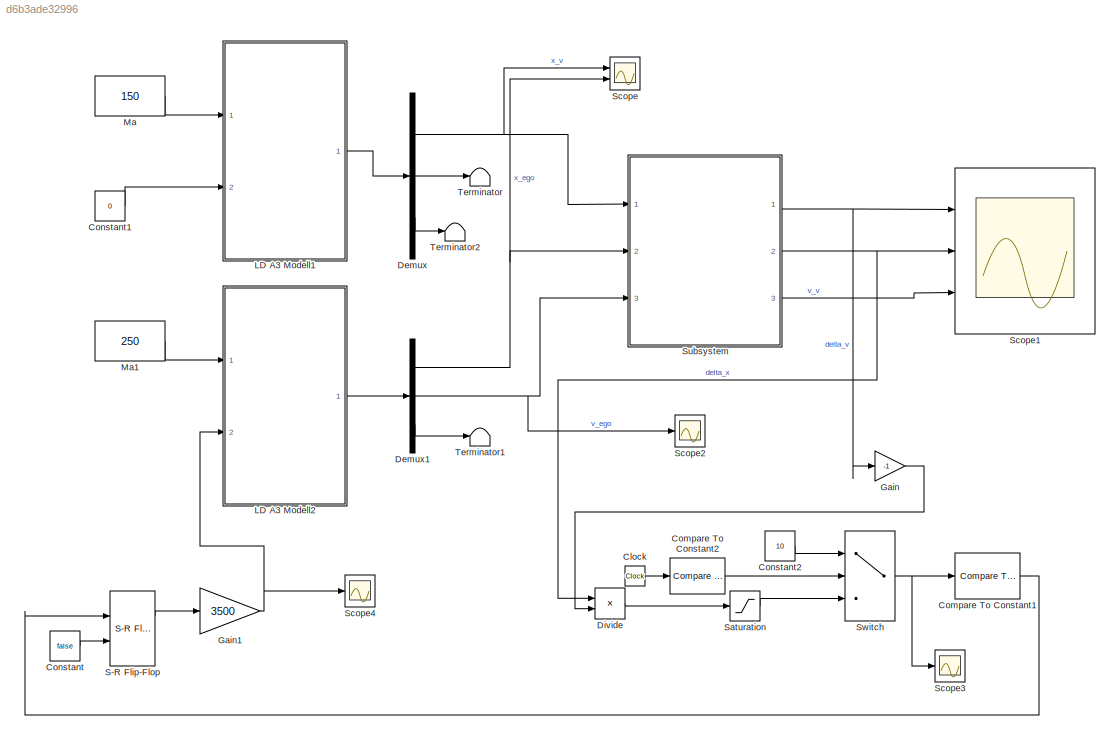
MODEL slx_d6b3ade32996
KIND model
CONFIG AbsTol = auto
CONFIG EnableMultiTasking = off
CONFIG FixedStep = 0.01
CONFIG MaxStep = auto
CONFIG MinStep = auto
CONFIG RelTol = 1e-3
CONFIG SampleTimeConstraint = Unconstrained
CONFIG SolverName = ode3
CONFIG StartTime = 0.0
CONFIG StopTime = 70
BLOCK [Clock] Clock
BLOCK [Reference] Compare To Constant1  REF=simulink/Logic and Bit
Operations/Compare
To Constant
  Ports = [1, 1]
  SourceBlock = simulink/Logic and Bit\nOperations/Compare\nTo Constant
  SourceProductBaseCode = SL
  SourceType = Compare To Constant
BLOCK [Reference] Compare To Constant2  REF=simulink/Logic and Bit
Operations/Compare
To Constant
  Ports = [1, 1]
  SourceBlock = simulink/Logic and Bit\nOperations/Compare\nTo Constant
  SourceProductBaseCode = SL
  SourceType = Compare To Constant
BLOCK [Constant] Constant
  Value = false
BLOCK [Constant] Constant1
  Value = 0
BLOCK [Constant] Constant2
  Value = 10
BLOCK [Demux] Demux
  Outputs = 3
  Ports = [1, 3]
BLOCK [Demux] Demux1
  Outputs = 3
  Ports = [1, 3]
BLOCK [Product] Divide
  Inputs = */
  Ports = [2, 1]
BLOCK [Gain] Gain
  Gain = -1
BLOCK [Gain] Gain1
  Gain = 3500
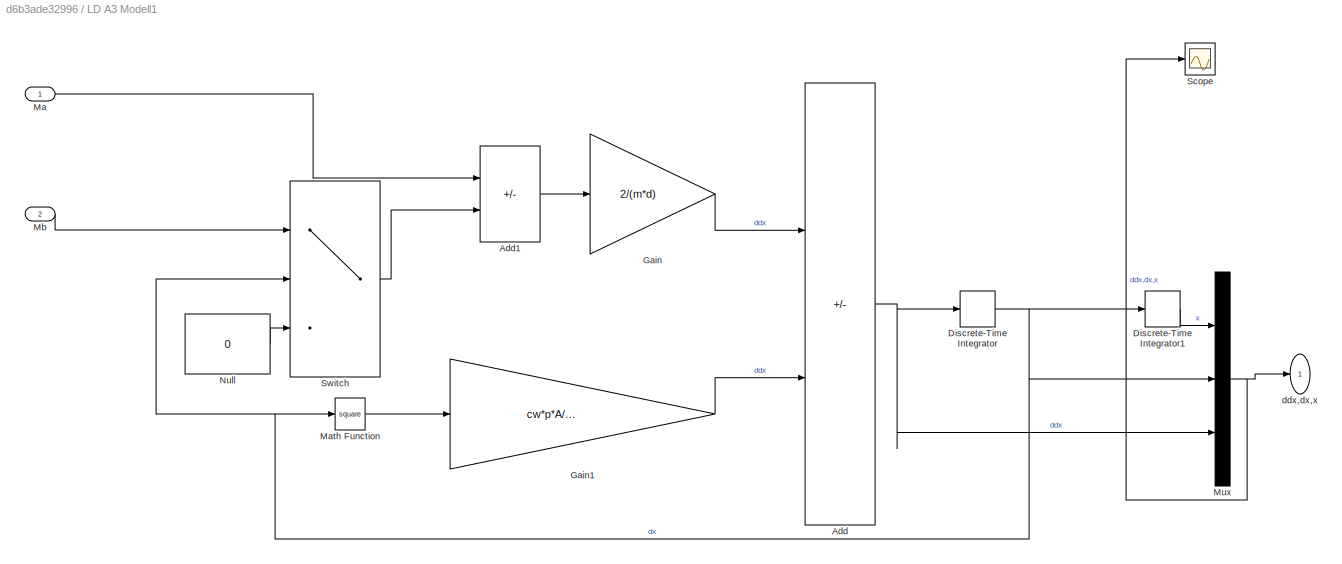
BLOCK [SubSystem] LD A3 Modell1
  Ports = [2, 1]
  RequestExecContextInheritance = off
BLOCK [Sum] LD A3 Modell1/Add
  IconShape = rectangular
  Inputs = +-
  Ports = [2, 1]
BLOCK [Sum] LD A3 Modell1/Add1
  IconShape = rectangular
  Inputs = +-
  Ports = [2, 1]
BLOCK [DiscreteIntegrator] LD A3 Modell1/Discrete-Time Integrator
  ICPrevOutput = DiscIntNeverNeededParam
  ICPrevScaledInput = DiscIntNeverNeededParam
  InitialCondition = v_start
  InitialConditionSetting = Auto
  Ports = [1, 1]
  SampleTime = -1
BLOCK [DiscreteIntegrator] LD A3 Modell1/Discrete-Time Integrator1
  ICPrevOutput = DiscIntNeverNeededParam
  ICPrevScaledInput = DiscIntNeverNeededParam
  InitialCondition = x_start
  InitialConditionSetting = Auto
  Ports = [1, 1]
  SampleTime = -1
BLOCK [Gain] LD A3 Modell1/Gain
  Gain = 2/(m*d)
BLOCK [Gain] LD A3 Modell1/Gain1
  Gain = cw*p*A/2/m
BLOCK [Inport] LD A3 Modell1/Ma 
BLOCK [Math] LD A3 Modell1/Math Function
  Operator = square
  Ports = [1, 1]
  SignedPower = on
BLOCK [Inport] LD A3 Modell1/Mb 
  Port = 2
BLOCK [Mux] LD A3 Modell1/Mux
  DisplayOption = bar
  Inputs = 3
  Ports = [3, 1]
BLOCK [Constant] LD A3 Modell1/Null
  Value = 0
BLOCK [Scope] LD A3 Modell1/Scope
  Floating = off
  NumInputPorts = 1
  Ports = [1]
  ScopeSpecificationString = Simulink.scopes.TimeScopeBlockCfg('CurrentConfiguration', extmgr.ConfigurationSet(extmgr.Configuration('Core','General UI',true),extmgr.Configuration('Core','Source UI',true),extmgr.Configuration('Sources','WiredSimulink',true,'DataLoggingVariableName','ScopeData2'),extmgr.Configuration('Visuals','Time Domain',true,'SerializedDisplays',{struct('MinYLimReal','-173.77223','MaxYLimReal','1549.5899','...<+1439ch>
BLOCK [Switch] LD A3 Modell1/Switch
  Criteria = u2 > Threshold
  InputSameDT = off
  SaturateOnIntegerOverflow = off
BLOCK [Outport] LD A3 Modell1/ddx,dx,x
  VectorParamsAs1DForOutWhenUnconnected = off
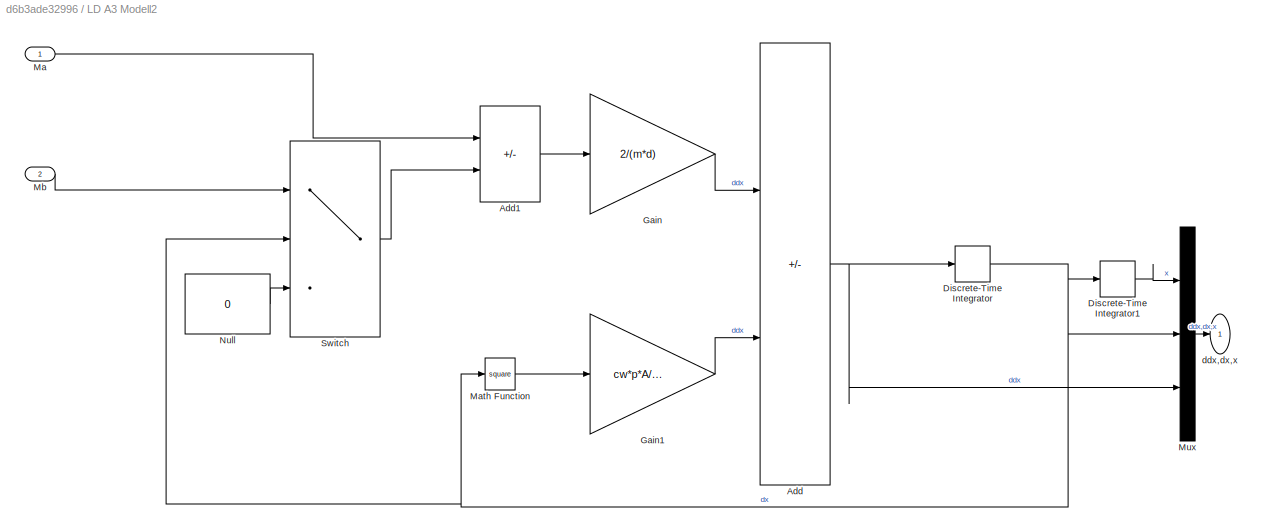
BLOCK [SubSystem] LD A3 Modell2
  Ports = [2, 1]
  RequestExecContextInheritance = off
BLOCK [Sum] LD A3 Modell2/Add
  IconShape = rectangular
  Inputs = +-
  Ports = [2, 1]
BLOCK [Sum] LD A3 Modell2/Add1
  IconShape = rectangular
  Inputs = +-
  Ports = [2, 1]
BLOCK [DiscreteIntegrator] LD A3 Modell2/Discrete-Time Integrator
  ICPrevOutput = DiscIntNeverNeededParam
  ICPrevScaledInput = DiscIntNeverNeededParam
  InitialCondition = v_start
  InitialConditionSetting = Auto
  Ports = [1, 1]
  SampleTime = -1
BLOCK [DiscreteIntegrator] LD A3 Modell2/Discrete-Time Integrator1
  ICPrevOutput = DiscIntNeverNeededParam
  ICPrevScaledInput = DiscIntNeverNeededParam
  InitialCondition = x_start
  InitialConditionSetting = Auto
  Ports = [1, 1]
  SampleTime = -1
BLOCK [Gain] LD A3 Modell2/Gain
  Gain = 2/(m*d)
BLOCK [Gain] LD A3 Modell2/Gain1
  Gain = cw*p*A/2/m
BLOCK [Inport] LD A3 Modell2/Ma 
BLOCK [Math] LD A3 Modell2/Math Function
  Operator = square
  Ports = [1, 1]
  SignedPower = on
BLOCK [Inport] LD A3 Modell2/Mb 
  Port = 2
BLOCK [Mux] LD A3 Modell2/Mux
  DisplayOption = bar
  Inputs = 3
  Ports = [3, 1]
BLOCK [Constant] LD A3 Modell2/Null
  Value = 0
BLOCK [Switch] LD A3 Modell2/Switch
  Criteria = u2 > Threshold
  InputSameDT = off
  SaturateOnIntegerOverflow = off
BLOCK [Outport] LD A3 Modell2/ddx,dx,x
  VectorParamsAs1DForOutWhenUnconnected = off
BLOCK [Constant] Ma
  Value = 150
BLOCK [Constant] Ma1
  Value = 250
BLOCK [Reference] S-R Flip-Flop  REF=simulink_extras/Flip Flops/S-R
Flip-Flop
  Ports = [2, 2]
  SourceBlock = simulink_extras/Flip Flops/S-R\nFlip-Flop
  SourceProductBaseCode = SL
  SourceType = SRFlipFlop
BLOCK [Saturate] Saturation
  UpperLimit = 10
BLOCK [Scope] Scope
  Floating = off
  NumInputPorts = 2
  Ports = [2]
  ScopeSpecificationString = Simulink.scopes.TimeScopeBlockCfg('CurrentConfiguration', extmgr.ConfigurationSet(extmgr.Configuration('Core','General UI',true),extmgr.Configuration('Core','Source UI',true),extmgr.Configuration('Sources','WiredSimulink',true,'DataLoggingVariableName','ScopeData1'),extmgr.Configuration('Visuals','Time Domain',true,'SerializedDisplays',{struct('MinYLimReal','-172.15671','MaxYLimReal','1549.4104','...<+1461ch>
BLOCK [Scope] Scope1
  Floating = off
  NumInputPorts = 3
  Ports = [3]
  ScopeSpecificationString = Simulink.scopes.TimeScopeBlockCfg('CurrentConfiguration', extmgr.ConfigurationSet(extmgr.Configuration('Core','General UI',true),extmgr.Configuration('Core','Source UI',true),extmgr.Configuration('Sources','WiredSimulink',true,'DataLoggingVariableName','ScopeData1'),extmgr.Configuration('Visuals','Time Domain',true,'SerializedDisplays',{struct('MinYLimReal','-19.74323','MaxYLimReal','1.41626','YLa...<+3121ch>
BLOCK [Scope] Scope2
  Floating = off
  NumInputPorts = 1
  Ports = [1]
  ScopeSpecificationString = Simulink.scopes.TimeScopeBlockCfg('CurrentConfiguration', extmgr.ConfigurationSet(extmgr.Configuration('Core','General UI',true),extmgr.Configuration('Core','Source UI',true),extmgr.Configuration('Sources','WiredSimulink',true,'DataLoggingVariableName','ScopeData3'),extmgr.Configuration('Visuals','Time Domain',true,'SerializedDisplays',{struct('MinYLimReal','-4.81562','MaxYLimReal','42.69403','YLa...<+1368ch>
BLOCK [Scope] Scope3
  Floating = off
  NumInputPorts = 1
  Ports = [1]
  ScopeSpecificationString = Simulink.scopes.TimeScopeBlockCfg('CurrentConfiguration', extmgr.ConfigurationSet(extmgr.Configuration('Core','General UI',true),extmgr.Configuration('Core','Source UI',true),extmgr.Configuration('Sources','WiredSimulink',true,'DataLoggingVariableName','ScopeData1'),extmgr.Configuration('Visuals','Time Domain',true,'SerializedDisplays',{struct('MinYLimReal','-2.72837','MaxYLimReal','13.5549','YLab...<+1713ch>
BLOCK [Scope] Scope4
  Floating = off
  NumInputPorts = 1
  Ports = [1]
  ScopeSpecificationString = Simulink.scopes.TimeScopeBlockCfg('CurrentConfiguration', extmgr.ConfigurationSet(extmgr.Configuration('Core','General UI',true),extmgr.Configuration('Core','Source UI',true),extmgr.Configuration('Sources','WiredSimulink',true,'DataLoggingVariableName','ScopeData5'),extmgr.Configuration('Visuals','Time Domain',true,'SerializedDisplays',{struct('MinYLimReal','-437.5','MaxYLimReal','3937.5','YLabelR...<+1358ch>
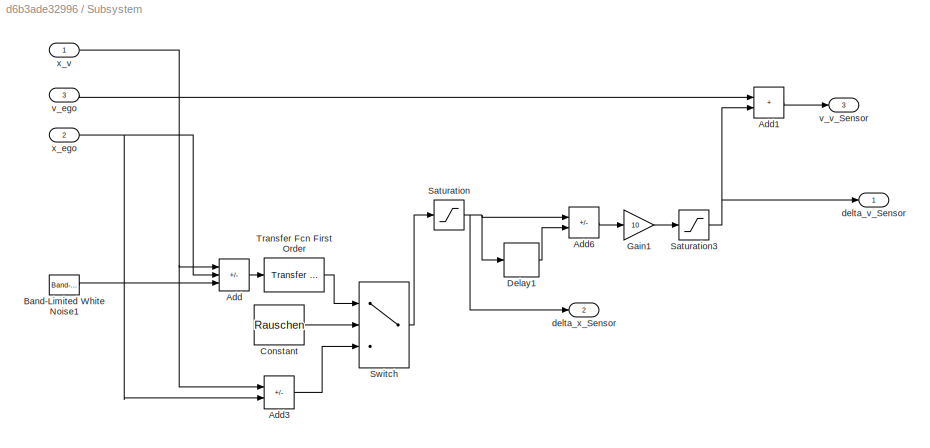
BLOCK [SubSystem] Subsystem
  Ports = [3, 3]
  RequestExecContextInheritance = off
BLOCK [Sum] Subsystem/Add
  IconShape = rectangular
  Inputs = +-+
  Ports = [3, 1]
BLOCK [Sum] Subsystem/Add1
  IconShape = rectangular
  Ports = [2, 1]
BLOCK [Sum] Subsystem/Add3
  IconShape = rectangular
  Inputs = +-
  Ports = [2, 1]
BLOCK [Sum] Subsystem/Add6
  IconShape = rectangular
  Inputs = +-
  Ports = [2, 1]
BLOCK [Reference] Subsystem/Band-Limited White Noise1  REF=simulink/Sources/Band-Limited
White Noise
  Ports = [0, 1]
  SourceBlock = simulink/Sources/Band-Limited\nWhite Noise
  SourceProductBaseCode = SL
  SourceType = Band-Limited White Noise.
BLOCK [Constant] Subsystem/Constant
  Value = Rauschen
BLOCK [Delay] Subsystem/Delay1
  DelayLength = 10
  InputPortMap = u0
  Ports = [1, 1]
BLOCK [Gain] Subsystem/Gain1
  Gain = 10
BLOCK [Saturate] Subsystem/Saturation
  LowerLimit = 0
  UpperLimit = 200
BLOCK [Saturate] Subsystem/Saturation3
  LowerLimit = -50
  UpperLimit = -0.01
BLOCK [Switch] Subsystem/Switch
  Criteria = u2 > Threshold
  InputSameDT = off
  SaturateOnIntegerOverflow = off
BLOCK [Reference] Subsystem/Transfer Fcn First Order  REF=simulink/Discrete/Transfer Fcn
First Order
  Ports = [1, 1]
  SourceBlock = simulink/Discrete/Transfer Fcn\nFirst Order
  SourceProductBaseCode = SL
  SourceType = First Order Transfer Fcn
BLOCK [Outport] Subsystem/delta_v_Sensor
  VectorParamsAs1DForOutWhenUnconnected = off
BLOCK [Outport] Subsystem/delta_x_Sensor
  Port = 2
  VectorParamsAs1DForOutWhenUnconnected = off
BLOCK [Inport] Subsystem/v_ego
  Port = 3
BLOCK [Outport] Subsystem/v_v_Sensor
  Port = 3
  VectorParamsAs1DForOutWhenUnconnected = off
BLOCK [Inport] Subsystem/x_ego
  Port = 2
BLOCK [Inport] Subsystem/x_v
BLOCK [Switch] Switch
  Criteria = u2 > Threshold
  InputSameDT = off
  SaturateOnIntegerOverflow = off
BLOCK [Terminator] Terminator
BLOCK [Terminator] Terminator1
BLOCK [Terminator] Terminator2
LINE Clock:1 -> Compare To Constant2:1
LINE Compare To Constant1:1 -> S-R Flip-Flop:1
LINE Compare To Constant2:1 -> Switch:2
LINE Constant1:1 -> LD A3 Modell1:2
LINE Constant2:1 -> Switch:1
LINE Constant:1 -> S-R Flip-Flop:2
NET Demux1:1 -> Scope:2, Subsystem:2
NET Demux1:2 -> Scope2:1, Subsystem:3
LINE Demux1:3 -> Terminator1:1
NET Demux:1 -> Scope:1, Subsystem:1
LINE Demux:2 -> Terminator:1
LINE Demux:3 -> Terminator2:1
LINE Divide:1 -> Saturation:1
NET Gain1:1 -> LD A3 Modell2:2, Scope4:1
LINE Gain:1 -> Divide:2
LINE LD A3 Modell1/Add1:1 -> LD A3 Modell1/Gain:1
NET LD A3 Modell1/Add:1 -> LD A3 Modell1/Discrete-Time Integrator:1, LD A3 Modell1/Mux:3
LINE LD A3 Modell1/Discrete-Time Integrator1:1 -> LD A3 Modell1/Mux:1
NET LD A3 Modell1/Discrete-Time Integrator:1 -> LD A3 Modell1/Discrete-Time Integrator1:1, LD A3 Modell1/Math Function:1, LD A3 Modell1/Mux:2, LD A3 Modell1/Switch:2
LINE LD A3 Modell1/Gain1:1 -> LD A3 Modell1/Add:2
LINE LD A3 Modell1/Gain:1 -> LD A3 Modell1/Add:1
LINE LD A3 Modell1/Ma :1 -> LD A3 Modell1/Add1:1
LINE LD A3 Modell1/Math Function:1 -> LD A3 Modell1/Gain1:1
LINE LD A3 Modell1/Mb :1 -> LD A3 Modell1/Switch:1
NET LD A3 Modell1/Mux:1 -> LD A3 Modell1/Scope:1, LD A3 Modell1/ddx,dx,x:1
LINE LD A3 Modell1/Null:1 -> LD A3 Modell1/Switch:3
LINE LD A3 Modell1/Switch:1 -> LD A3 Modell1/Add1:2
LINE LD A3 Modell1:1 -> Demux:1
LINE LD A3 Modell2/Add1:1 -> LD A3 Modell2/Gain:1
NET LD A3 Modell2/Add:1 -> LD A3 Modell2/Discrete-Time Integrator:1, LD A3 Modell2/Mux:3
LINE LD A3 Modell2/Discrete-Time Integrator1:1 -> LD A3 Modell2/Mux:1
NET LD A3 Modell2/Discrete-Time Integrator:1 -> LD A3 Modell2/Discrete-Time Integrator1:1, LD A3 Modell2/Math Function:1, LD A3 Modell2/Mux:2, LD A3 Modell2/Switch:2
LINE LD A3 Modell2/Gain1:1 -> LD A3 Modell2/Add:2
LINE LD A3 Modell2/Gain:1 -> LD A3 Modell2/Add:1
LINE LD A3 Modell2/Ma :1 -> LD A3 Modell2/Add1:1
LINE LD A3 Modell2/Math Function:1 -> LD A3 Modell2/Gain1:1
LINE LD A3 Modell2/Mb :1 -> LD A3 Modell2/Switch:1
LINE LD A3 Modell2/Mux:1 -> LD A3 Modell2/ddx,dx,x:1
LINE LD A3 Modell2/Null:1 -> LD A3 Modell2/Switch:3
LINE LD A3 Modell2/Switch:1 -> LD A3 Modell2/Add1:2
LINE LD A3 Modell2:1 -> Demux1:1
LINE Ma1:1 -> LD A3 Modell2:1
LINE Ma:1 -> LD A3 Modell1:1
LINE S-R Flip-Flop:1 -> Gain1:1
LINE Saturation:1 -> Switch:3
LINE Subsystem/Add1:1 -> Subsystem/v_v_Sensor:1
LINE Subsystem/Add3:1 -> Subsystem/Switch:3
LINE Subsystem/Add6:1 -> Subsystem/Gain1:1
LINE Subsystem/Add:1 -> Subsystem/Transfer Fcn First Order:1
LINE Subsystem/Band-Limited White Noise1:1 -> Subsystem/Add:3
LINE Subsystem/Constant:1 -> Subsystem/Switch:2
LINE Subsystem/Delay1:1 -> Subsystem/Add6:2
LINE Subsystem/Gain1:1 -> Subsystem/Saturation3:1
NET Subsystem/Saturation3:1 -> Subsystem/Add1:2, Subsystem/delta_v_Sensor:1
NET Subsystem/Saturation:1 -> Subsystem/Add6:1, Subsystem/Delay1:1, Subsystem/delta_x_Sensor:1
LINE Subsystem/Switch:1 -> Subsystem/Saturation:1
LINE Subsystem/Transfer Fcn First Order:1 -> Subsystem/Switch:1
LINE Subsystem/v_ego:1 -> Subsystem/Add1:1
NET Subsystem/x_ego:1 -> Subsystem/Add3:2, Subsystem/Add:2
NET Subsystem/x_v:1 -> Subsystem/Add3:1, Subsystem/Add:1
NET Subsystem:1 -> Gain:1, Scope1:1
NET Subsystem:2 -> Divide:1, Scope1:2
LINE Subsystem:3 -> Scope1:3
NET Switch:1 -> Compare To Constant1:1, Scope3:1
note: NET lines group one-source signal fan-out (src -> all destinations, sorted); 1:1 wires keep LINE
